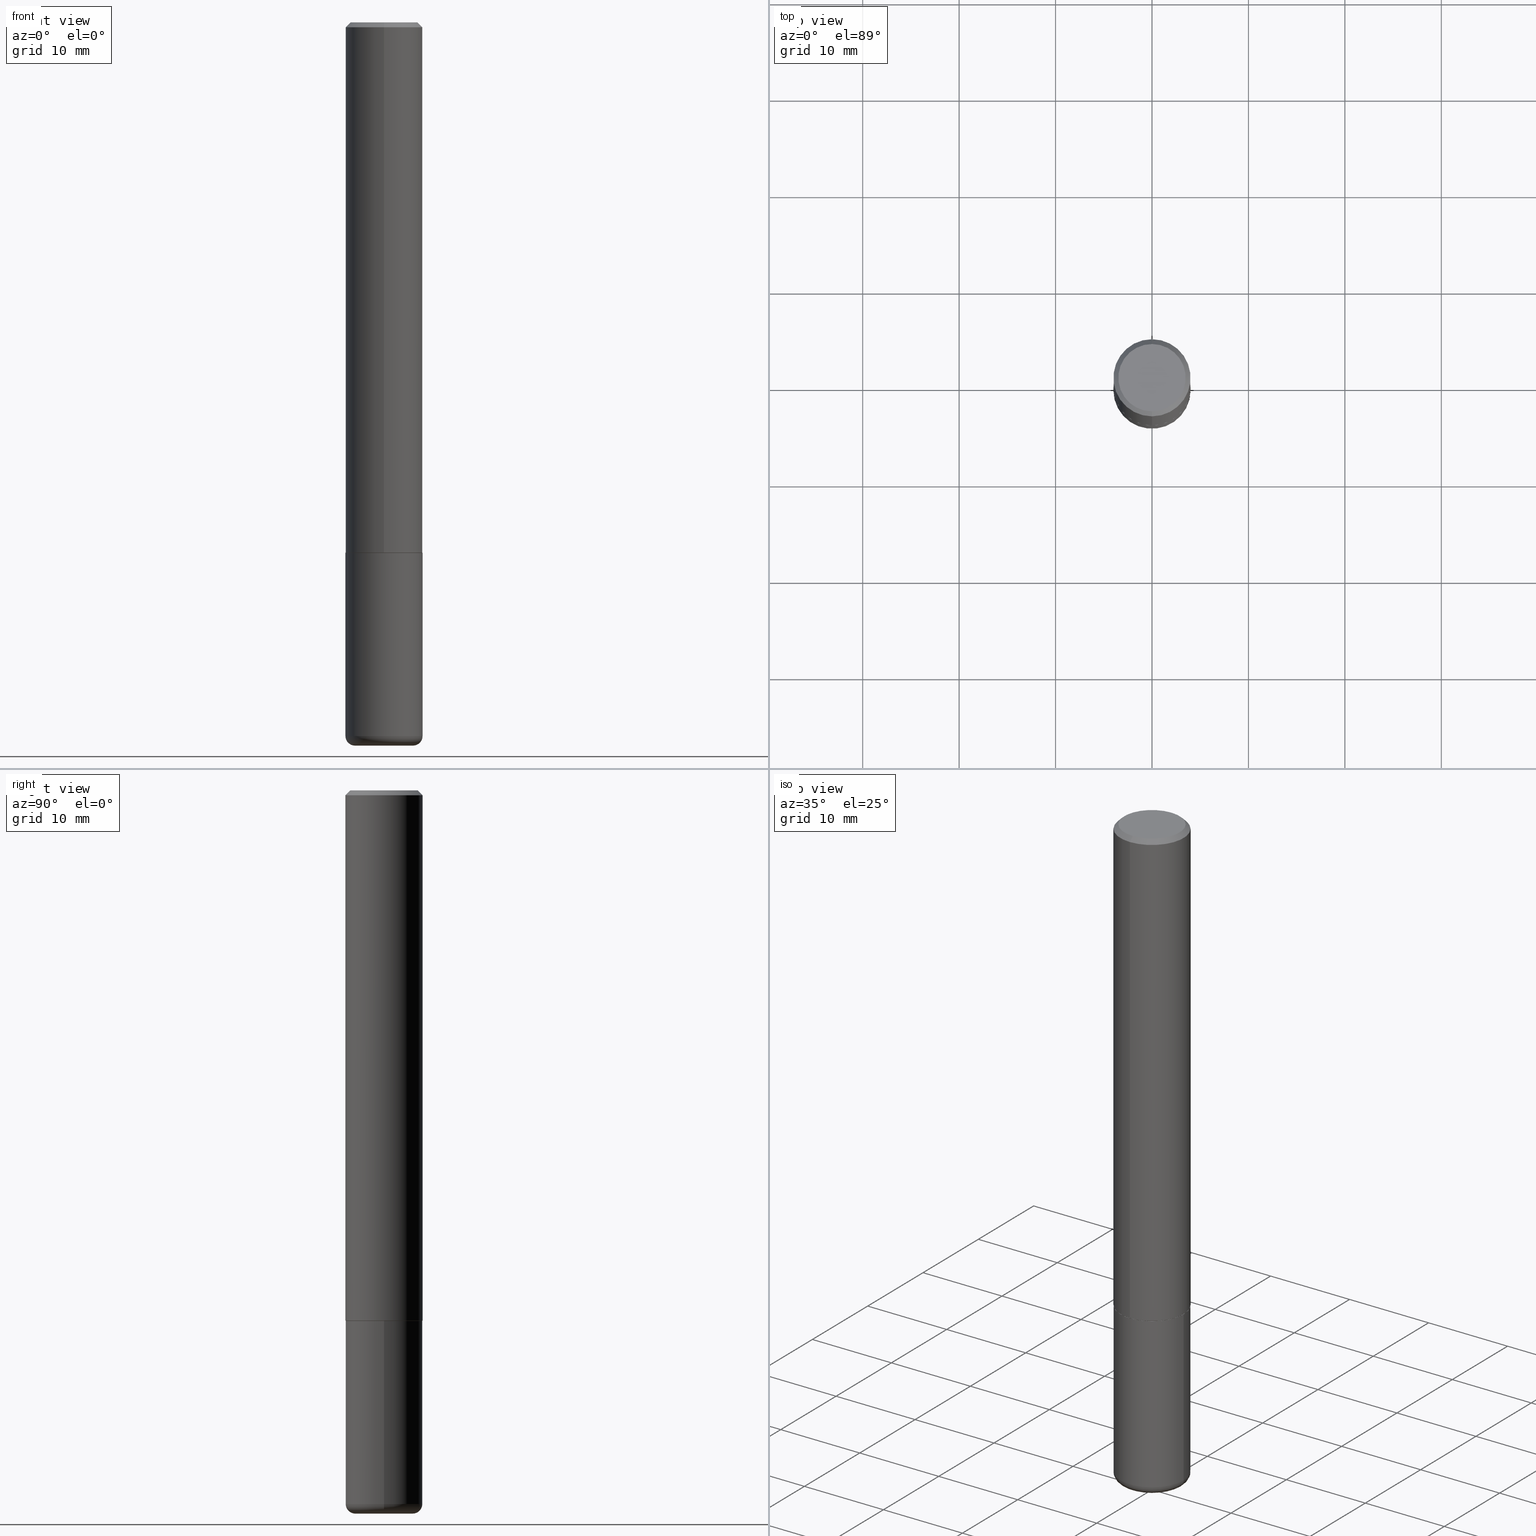
[diagram: canonical four-view strip — front | top / right | iso, engineering-drawing reading convention]
A machine part, canonical four-view strip (front | top / right | iso — engineering-drawing reading convention). The complete STEP part file that produces these views, byte-faithful:
ISO-10303-21;
HEADER;
FILE_DESCRIPTION (( 'STEP AP203' ),
    '1' );
FILE_NAME ('74358.STEP',
    '2024-03-06T15:08:53',
    ( '' ),
    ( '' ),
    'SwSTEP 2.0',
    'SolidWorks 2023',
    '' );
FILE_SCHEMA (( 'CONFIG_CONTROL_DESIGN' ));
ENDSEC;

DATA;
#1 = DIRECTION ( 'NONE',  ( -2.445468806185136597E-29, 3.491481338843145583E-15, 1.000000000000000000 ) ) ;
#2 = CC_DESIGN_PERSON_AND_ORGANIZATION_ASSIGNMENT ( #259, #187, ( #9 ) ) ;
#3 = CARTESIAN_POINT ( 'NONE',  ( 5.291802256310474180E-29, -7.558638329013498276E-15, -2.164399999999999658 ) ) ;
#4 = SHAPE_DEFINITION_REPRESENTATION ( #39, #369 ) ;
#5 = CIRCLE ( 'NONE', #236, 0.1575000000000000011 ) ;
#6 = AXIS2_PLACEMENT_3D ( 'NONE', #390, #98, #267 ) ;
#7 = FACE_OUTER_BOUND ( 'NONE', #409, .T. ) ;
#8 = DIRECTION ( 'NONE',  ( -2.444928043019069804E-29, 3.492255742475281487E-15, 1.000000000000000000 ) ) ;
#9 = PRODUCT_DEFINITION_FORMATION_WITH_SPECIFIED_SOURCE ( 'ANY', '', #135, .NOT_KNOWN. ) ;
#10 = LINE ( 'NONE', #104, #48 ) ;
#11 = CC_DESIGN_PERSON_AND_ORGANIZATION_ASSIGNMENT ( #418, #59, ( #135 ) ) ;
#12 = DIRECTION ( 'NONE',  ( 6.982962677686264344E-15, 1.000000000000000000, -3.496114991891764787E-15 ) ) ;
#13 = CARTESIAN_POINT ( 'NONE',  ( 5.291802256310474180E-29, -7.558638329013498276E-15, -2.164399999999999658 ) ) ;
#14 = DIRECTION ( 'NONE',  ( -2.444928043019069804E-29, 3.492255742475281487E-15, 1.000000000000000000 ) ) ;
#15 = CARTESIAN_POINT ( 'NONE',  ( -0.1180999999999999966, -9.332930761652941905E-15, -2.913399999999999768 ) ) ;
#16 = ADVANCED_FACE ( 'NONE', ( #378 ), #174, .T. ) ;
#17 = VECTOR ( 'NONE', #52, 39.37007874015748143 ) ;
#18 = CARTESIAN_POINT ( 'NONE',  ( 1.099816621735587480E-15, 0.1574999999999999456, -0.02000000000000058328 ) ) ;
#19 = LINE ( 'NONE', #344, #17 ) ;
#20 =( NAMED_UNIT ( * ) SI_UNIT ( $, .STERADIAN. ) SOLID_ANGLE_UNIT ( ) );
#21 = EDGE_CURVE ( 'NONE', #190, #331, #362, .T. ) ;
#22 = VERTEX_POINT ( 'NONE', #240 ) ;
#23 = CARTESIAN_POINT ( 'NONE',  ( 0.1180999999999999966, -1.099676962482036915E-14, -2.913399999999999768 ) ) ;
#24 = APPROVAL_PERSON_ORGANIZATION ( #350, #196, #319 ) ;
#25 = ORIENTED_EDGE ( 'NONE', *, *, #398, .T. ) ;
#26 = CALENDAR_DATE ( 2024, 6, 3 ) ;
#27 = CARTESIAN_POINT ( 'NONE',  ( -0.1575000000000000011, -7.747162903036124976E-15, -2.165399999999999991 ) ) ;
#28 = DIMENSIONAL_EXPONENTS ( 1.000000000000000000, 0.000000000000000000, 0.000000000000000000, 0.000000000000000000, 0.000000000000000000, 0.000000000000000000, 0.000000000000000000 ) ;
#29 = APPROVAL_STATUS ( 'not_yet_approved' ) ;
#30 = PERSON_AND_ORGANIZATION ( #197, #203 ) ;
#31 = EDGE_LOOP ( 'NONE', ( #301, #143, #282, #152 ) ) ;
#32 = DIRECTION ( 'NONE',  ( 1.000000000000000000, -6.982962677686261977E-15, 0.000000000000000000 ) ) ;
#33 = DATE_TIME_ROLE ( 'classification_date' ) ;
#34 = ORIENTED_EDGE ( 'NONE', *, *, #260, .F. ) ;
#35 = EDGE_LOOP ( 'NONE', ( #61, #252, #391, #349 ) ) ;
#36 = DIRECTION ( 'NONE',  ( -2.444928043019069243E-29, 3.492255742475281487E-15, 1.000000000000000000 ) ) ;
#37 = AXIS2_PLACEMENT_3D ( 'NONE', #111, #397, #380 ) ;
#38 = CARTESIAN_POINT ( 'NONE',  ( 7.220980290903470182E-29, -1.030964609733603853E-14, -2.952799999999999869 ) ) ;
#39 = PRODUCT_DEFINITION_SHAPE ( 'NONE', 'NONE',  #133 ) ;
#40 = EDGE_LOOP ( 'NONE', ( #417, #58, #94, #134 ) ) ;
#41 = UNCERTAINTY_MEASURE_WITH_UNIT (LENGTH_MEASURE( 1.000000000000000082E-05 ), #310, 'distance_accuracy_value', 'NONE');
#42 = EDGE_LOOP ( 'NONE', ( #195, #303 ) ) ;
#43 = CONICAL_SURFACE ( 'NONE', #237, 0.1575000000000000289, 0.7853981633974481680 ) ;
#44 = CC_DESIGN_SECURITY_CLASSIFICATION ( #317, ( #9 ) ) ;
#45 = DIRECTION ( 'NONE',  ( -2.445468806185136597E-29, 3.491481338843145583E-15, 1.000000000000000000 ) ) ;
#46 = CARTESIAN_POINT ( 'NONE',  ( 0.1575000000000000289, -1.127189835432120758E-14, -2.913399999999999768 ) ) ;
#47 = DIRECTION ( 'NONE',  ( 1.000000000000000000, -6.982962677686273021E-15, 0.000000000000000000 ) ) ;
#48 = VECTOR ( 'NONE', #235, 39.37007874015748143 ) ;
#49 = DESIGN_CONTEXT ( 'detailed design', #271, 'design' ) ;
#50 = DIRECTION ( 'NONE',  ( -6.982962677686265922E-15, -1.000000000000000000, 3.492255742475281487E-15 ) ) ;
#51 = ORIENTED_EDGE ( 'NONE', *, *, #408, .T. ) ;
#52 = DIRECTION ( 'NONE',  ( -2.444928043019069524E-29, 3.492255742475281487E-15, 1.000000000000000000 ) ) ;
#53 = CIRCLE ( 'NONE', #113, 0.1575000000000000011 ) ;
#54 = DIRECTION ( 'NONE',  ( -2.444928043019069804E-29, 3.492255742475281487E-15, 1.000000000000000000 ) ) ;
#55 = CALENDAR_DATE ( 2024, 6, 3 ) ;
#56 = VECTOR ( 'NONE', #212, 39.37007874015748854 ) ;
#57 = DIRECTION ( 'NONE',  ( -6.982962677686265133E-15, -1.000000000000000000, 3.492255742475281487E-15 ) ) ;
#58 = ORIENTED_EDGE ( 'NONE', *, *, #269, .T. ) ;
#59 = PERSON_AND_ORGANIZATION_ROLE ( 'design_owner' ) ;
#60 = EDGE_LOOP ( 'NONE', ( #99, #327, #51, #164 ) ) ;
#61 = ORIENTED_EDGE ( 'NONE', *, *, #262, .F. ) ;
#62 = CARTESIAN_POINT ( 'NONE',  ( 5.294247184353492784E-29, -7.562130584755974132E-15, -2.165399999999999991 ) ) ;
#63 = VERTEX_POINT ( 'NONE', #312 ) ;
#64 = LOCAL_TIME ( 10, 8, 53.00000000000000000, #87 ) ;
#65 = PERSON_AND_ORGANIZATION ( #197, #203 ) ;
#66 = EDGE_LOOP ( 'NONE', ( #413, #157, #321, #91 ) ) ;
#67 = ORIENTED_EDGE ( 'NONE', *, *, #80, .T. ) ;
#68 = CARTESIAN_POINT ( 'NONE',  ( 5.295418152913294345E-29, -7.560453691130947423E-15, -2.165399999999999991 ) ) ;
#69 = CIRCLE ( 'NONE', #124, 0.03940000000000005997 ) ;
#70 = ORIENTED_EDGE ( 'NONE', *, *, #101, .F. ) ;
#71 = CC_DESIGN_DATE_AND_TIME_ASSIGNMENT ( #148, #33, ( #317 ) ) ;
#72 = MANIFOLD_SOLID_BREP ( 'Body-Move/Copy2[1]', #304 ) ;
#73 = CC_DESIGN_APPROVAL ( #123, ( #9 ) ) ;
#74 = PLANE ( 'NONE',  #129 ) ;
#75 = CARTESIAN_POINT ( 'NONE',  ( 0.000000000000000000, 0.000000000000000000, 0.000000000000000000 ) ) ;
#76 = EDGE_CURVE ( 'NONE', #106, #361, #53, .T. ) ;
#77 = CIRCLE ( 'NONE', #181, 0.1575000000000003064 ) ;
#78 = CIRCLE ( 'NONE', #396, 0.03940000000000005997 ) ;
#79 = APPLICATION_PROTOCOL_DEFINITION ( 'international standard', 'config_control_design', 1994, #131 ) ;
#80 = EDGE_CURVE ( 'NONE', #63, #335, #230, .T. ) ;
#81 = EDGE_LOOP ( 'NONE', ( #381, #102, #220, #96 ) ) ;
#82 = ORIENTED_EDGE ( 'NONE', *, *, #119, .T. ) ;
#83 = CARTESIAN_POINT ( 'NONE',  ( 1.119104808822185805E-15, 0.1574999999999927569, -2.164400000000000102 ) ) ;
#84 = EDGE_CURVE ( 'NONE', #268, #361, #10, .T. ) ;
#85 = AXIS2_PLACEMENT_3D ( 'NONE', #343, #144, #299 ) ;
#86 = EDGE_CURVE ( 'NONE', #361, #106, #224, .T. ) ;
#87 = COORDINATED_UNIVERSAL_TIME_OFFSET ( 5, 0, .BEHIND. ) ;
#88 = AXIS2_PLACEMENT_3D ( 'NONE', #13, #150, #250 ) ;
#89 = CARTESIAN_POINT ( 'NONE',  ( -1.080528434649015779E-15, -0.1575000000000000844, -0.01999999999999948347 ) ) ;
#90 = COORDINATED_UNIVERSAL_TIME_OFFSET ( 5, 0, .BEHIND. ) ;
#91 = ORIENTED_EDGE ( 'NONE', *, *, #255, .F. ) ;
#92 = SECURITY_CLASSIFICATION_LEVEL ( 'unclassified' ) ;
#93 = FACE_OUTER_BOUND ( 'NONE', #223, .T. ) ;
#94 = ORIENTED_EDGE ( 'NONE', *, *, #125, .F. ) ;
#95 = VECTOR ( 'NONE', #140, 39.37007874015748143 ) ;
#96 = ORIENTED_EDGE ( 'NONE', *, *, #205, .F. ) ;
#97 = PERSON_AND_ORGANIZATION ( #197, #203 ) ;
#98 = DIRECTION ( 'NONE',  ( -2.445468806185136597E-29, 3.491481338843145583E-15, 1.000000000000000000 ) ) ;
#99 = ORIENTED_EDGE ( 'NONE', *, *, #269, .F. ) ;
#100 = DIRECTION ( 'NONE',  ( -2.444928043019069804E-29, 3.492255742475281487E-15, 1.000000000000000000 ) ) ;
#101 = EDGE_CURVE ( 'NONE', #63, #379, #307, .T. ) ;
#102 = ORIENTED_EDGE ( 'NONE', *, *, #226, .T. ) ;
#103 = CC_DESIGN_PERSON_AND_ORGANIZATION_ASSIGNMENT ( #128, #154, ( #9 ) ) ;
#104 = CARTESIAN_POINT ( 'NONE',  ( 0.1575000000000000011, -1.099816621735586889E-15, 7.679978421878598033E-30 ) ) ;
#105 = ADVANCED_FACE ( 'NONE', ( #370 ), #74, .F. ) ;
#106 = VERTEX_POINT ( 'NONE', #27 ) ;
#107 = CC_DESIGN_PERSON_AND_ORGANIZATION_ASSIGNMENT ( #30, #251, ( #133 ) ) ;
#108 = CARTESIAN_POINT ( 'NONE',  ( -1.099816621735587875E-15, -0.1575000000000001676, 5.500302794398574170E-16 ) ) ;
#109 = ADVANCED_FACE ( 'NONE', ( #149 ), #346, .T. ) ;
#110 = DIRECTION ( 'NONE',  ( -4.937700262165138110E-15, -0.7071067811866296182, 0.7071067811864654162 ) ) ;
#111 = CARTESIAN_POINT ( 'NONE',  ( 5.294247184353492784E-29, -7.562130584755974132E-15, -2.165399999999999991 ) ) ;
#112 = ADVANCED_FACE ( 'NONE', ( #179 ), #209, .T. ) ;
#113 = AXIS2_PLACEMENT_3D ( 'NONE', #404, #399, #232 ) ;
#114 = FACE_OUTER_BOUND ( 'NONE', #42, .T. ) ;
#115 = PLANE ( 'NONE',  #311 ) ;
#116 = CARTESIAN_POINT ( 'NONE',  ( 7.124628819939776708E-29, -1.017208173258561931E-14, -2.913399999999999768 ) ) ;
#117 = DIRECTION ( 'NONE',  ( -2.445468806185136597E-29, 3.491481338843145583E-15, 1.000000000000000000 ) ) ;
#118 = LINE ( 'NONE', #340, #368 ) ;
#119 = EDGE_CURVE ( 'NONE', #22, #379, #77, .T. ) ;
#120 = EDGE_LOOP ( 'NONE', ( #34, #289 ) ) ;
#121 = CARTESIAN_POINT ( 'NONE',  ( 7.124628819939776708E-29, -1.017208173258561931E-14, -2.913399999999999768 ) ) ;
#122 = CARTESIAN_POINT ( 'NONE',  ( -1.011923454671300053E-15, -0.1374999999999997891, 6.809117321244884418E-16 ) ) ;
#123 = APPROVAL ( #29, 'UNSPECIFIED' ) ;
#124 = AXIS2_PLACEMENT_3D ( 'NONE', #23, #137, #215 ) ;
#125 = EDGE_CURVE ( 'NONE', #268, #191, #5, .T. ) ;
#126 = ADVANCED_FACE ( 'NONE', ( #7 ), #261, .T. ) ;
#127 = CC_DESIGN_PERSON_AND_ORGANIZATION_ASSIGNMENT ( #65, #326, ( #317 ) ) ;
#128 = PERSON_AND_ORGANIZATION ( #197, #203 ) ;
#129 = AXIS2_PLACEMENT_3D ( 'NONE', #377, #214, #249 ) ;
#130 = LOCAL_TIME ( 10, 8, 53.00000000000000000, #322 ) ;
#131 = APPLICATION_CONTEXT ( 'configuration controlled 3d designs of mechanical parts and assemblies' ) ;
#132 = LOCAL_TIME ( 10, 8, 53.00000000000000000, #183 ) ;
#133 = PRODUCT_DEFINITION ( 'UNKNOWN', '', #9, #49 ) ;
#134 = ORIENTED_EDGE ( 'NONE', *, *, #408, .F. ) ;
#135 = PRODUCT ( '74358', '74358', '', ( #217 ) ) ;
#136 = ORIENTED_EDGE ( 'NONE', *, *, #76, .T. ) ;
#137 = DIRECTION ( 'NONE',  ( -6.982962677686266711E-15, -1.000000000000000000, 3.491481338843145583E-15 ) ) ;
#138 = DIRECTION ( 'NONE',  ( 7.105427357601001859E-15, 1.000000000000000000, -3.491481338843145583E-15 ) ) ;
#139 = AXIS2_PLACEMENT_3D ( 'NONE', #171, #314, #281 ) ;
#140 = DIRECTION ( 'NONE',  ( -2.445468806185136877E-29, 3.491481338843145188E-15, 1.000000000000000000 ) ) ;
#141 = CARTESIAN_POINT ( 'NONE',  ( 4.889856086038147210E-31, -6.984511484950574659E-17, -0.02000000000000003511 ) ) ;
#142 = FACE_OUTER_BOUND ( 'NONE', #412, .T. ) ;
#143 = ORIENTED_EDGE ( 'NONE', *, *, #165, .T. ) ;
#144 = DIRECTION ( 'NONE',  ( -2.445468806185136597E-29, 3.491481338843145583E-15, 1.000000000000000000 ) ) ;
#145 = TOROIDAL_SURFACE ( 'NONE', #216, 0.1180999999999999966, 0.03940000000000005997 ) ;
#146 = ADVANCED_FACE ( 'NONE', ( #93 ), #228, .F. ) ;
#147 = ORIENTED_EDGE ( 'NONE', *, *, #398, .F. ) ;
#148 = DATE_AND_TIME ( #227, #130 ) ;
#149 = FACE_OUTER_BOUND ( 'NONE', #81, .T. ) ;
#150 = DIRECTION ( 'NONE',  ( -2.444928043019069804E-29, 3.492255742475281487E-15, 1.000000000000000000 ) ) ;
#151 = DATE_AND_TIME ( #26, #132 ) ;
#152 = ORIENTED_EDGE ( 'NONE', *, *, #76, .F. ) ;
#153 = CIRCLE ( 'NONE', #199, 0.1575000000000000289 ) ;
#154 = PERSON_AND_ORGANIZATION_ROLE ( 'creator' ) ;
#155 = DIRECTION ( 'NONE',  ( -1.000000000000000000, 6.982962677686265922E-15, -4.876176775795935793E-29 ) ) ;
#156 = APPROVAL_DATE_TIME ( #151, #296 ) ;
#157 = ORIENTED_EDGE ( 'NONE', *, *, #262, .T. ) ;
#158 = DIRECTION ( 'NONE',  ( 1.000000000000000000, 0.000000000000000000, 0.000000000000000000 ) ) ;
#159 = CIRCLE ( 'NONE', #357, 0.1180999999999999966 ) ;
#160 = ADVANCED_FACE ( 'NONE', ( #222 ), #383, .T. ) ;
#161 = CC_DESIGN_APPROVAL ( #296, ( #317 ) ) ;
#162 = DIRECTION ( 'NONE',  ( -2.445468806185136597E-29, 3.491481338843145583E-15, 1.000000000000000000 ) ) ;
#163 = CARTESIAN_POINT ( 'NONE',  ( 5.294247184353492784E-29, -7.562130584755974132E-15, -2.165399999999999991 ) ) ;
#164 = ORIENTED_EDGE ( 'NONE', *, *, #165, .F. ) ;
#165 = EDGE_CURVE ( 'NONE', #191, #268, #270, .T. ) ;
#166 = AXIS2_PLACEMENT_3D ( 'NONE', #62, #323, #292 ) ;
#167 = VECTOR ( 'NONE', #201, 39.37007874015748854 ) ;
#168 = ORIENTED_EDGE ( 'NONE', *, *, #125, .T. ) ;
#169 = DIRECTION ( 'NONE',  ( 1.000000000000000000, -6.982962677686268288E-15, 0.000000000000000000 ) ) ;
#170 = ADVANCED_FACE ( 'NONE', ( #280 ), #115, .T. ) ;
#171 = CARTESIAN_POINT ( 'NONE',  ( -4.907620139431751550E-45, 7.009885081384458012E-31, 2.007265675341379917E-16 ) ) ;
#172 = DIRECTION ( 'NONE',  ( -2.444928043019069804E-29, 3.492255742475281487E-15, 1.000000000000000000 ) ) ;
#173 = DIRECTION ( 'NONE',  ( -2.444928043019069524E-29, 3.492255742475281487E-15, 1.000000000000000000 ) ) ;
#174 = CONICAL_SURFACE ( 'NONE', #166, 0.1565000000000000002, 0.7853981633975678500 ) ;
#175 = ADVANCED_FACE ( 'NONE', ( #277 ), #416, .T. ) ;
#176 =( GEOMETRIC_REPRESENTATION_CONTEXT ( 3 ) GLOBAL_UNCERTAINTY_ASSIGNED_CONTEXT ( ( #41 ) ) GLOBAL_UNIT_ASSIGNED_CONTEXT ( ( #310, #341, #20 ) ) REPRESENTATION_CONTEXT ( 'NONE', 'WORKASPACE' ) );
#177 = DIRECTION ( 'NONE',  ( -6.982962677686264344E-15, -1.000000000000000000, 3.496114991891764787E-15 ) ) ;
#178 = LENGTH_MEASURE_WITH_UNIT ( LENGTH_MEASURE( 0.02539999999999999897 ), #403 );
#179 = FACE_OUTER_BOUND ( 'NONE', #31, .T. ) ;
#180 = DIRECTION ( 'NONE',  ( -2.444928043019069804E-29, 3.492255742475281487E-15, 1.000000000000000000 ) ) ;
#181 = AXIS2_PLACEMENT_3D ( 'NONE', #3, #100, #387 ) ;
#182 = DIRECTION ( 'NONE',  ( -6.982962677686265922E-15, -1.000000000000000000, 3.491179544618866730E-15 ) ) ;
#183 = COORDINATED_UNIVERSAL_TIME_OFFSET ( 5, 0, .BEHIND. ) ;
#184 = CARTESIAN_POINT ( 'NONE',  ( 0.000000000000000000, 0.000000000000000000, 0.000000000000000000 ) ) ;
#185 = CC_DESIGN_DATE_AND_TIME_ASSIGNMENT ( #189, #219, ( #133 ) ) ;
#186 = ORIENTED_EDGE ( 'NONE', *, *, #21, .F. ) ;
#187 = PERSON_AND_ORGANIZATION_ROLE ( 'design_supplier' ) ;
#188 = EDGE_CURVE ( 'NONE', #335, #63, #192, .T. ) ;
#189 = DATE_AND_TIME ( #356, #263 ) ;
#190 = VERTEX_POINT ( 'NONE', #89 ) ;
#191 = VERTEX_POINT ( 'NONE', #256 ) ;
#192 = CIRCLE ( 'NONE', #337, 0.1565000000000000002 ) ;
#193 = CALENDAR_DATE ( 2024, 6, 3 ) ;
#194 = ADVANCED_FACE ( 'NONE', ( #401 ), #43, .T. ) ;
#195 = ORIENTED_EDGE ( 'NONE', *, *, #188, .F. ) ;
#196 = APPROVAL ( #386, 'UNSPECIFIED' ) ;
#197 = PERSON ( 'UNSPECIFIED', 'UNSPECIFIED', 'UNSPECIFIED', ('UNSPECIFIED'), ('UNSPECIFIED'), ('UNSPECIFIED') ) ;
#198 = DIRECTION ( 'NONE',  ( 2.438088387897960049E-29, -3.491481338843145188E-15, -1.000000000000000000 ) ) ;
#199 = AXIS2_PLACEMENT_3D ( 'NONE', #372, #206, #177 ) ;
#200 = PRODUCT_RELATED_PRODUCT_CATEGORY ( 'detail', '', ( #135 ) ) ;
#201 = DIRECTION ( 'NONE',  ( -4.851104656540962697E-15, -0.7071067811865497932, -0.7071067811865451302 ) ) ;
#202 = ORIENTED_EDGE ( 'NONE', *, *, #393, .T. ) ;
#203 = ORGANIZATION ( 'UNSPECIFIED', 'UNSPECIFIED', '' ) ;
#204 = CARTESIAN_POINT ( 'NONE',  ( -1.092833659057847823E-15, -0.1565000000000075497, -2.165399999999999103 ) ) ;
#205 = EDGE_CURVE ( 'NONE', #331, #190, #153, .T. ) ;
#206 = DIRECTION ( 'NONE',  ( -2.444928043019069804E-29, 3.492255742475281487E-15, 1.000000000000000000 ) ) ;
#207 = DIRECTION ( 'NONE',  ( 2.438088387897960049E-29, -3.491481338843145188E-15, -1.000000000000000000 ) ) ;
#208 = CIRCLE ( 'NONE', #283, 0.1374999999999997891 ) ;
#209 = CYLINDRICAL_SURFACE ( 'NONE', #85, 0.1575000000000000011 ) ;
#210 = ORIENTED_EDGE ( 'NONE', *, *, #188, .T. ) ;
#211 = ADVANCED_FACE ( 'NONE', ( #114 ), #313, .F. ) ;
#212 = DIRECTION ( 'NONE',  ( 4.937700262164546464E-15, 0.7071067811865447972, -0.7071067811865500152 ) ) ;
#213 = DIRECTION ( 'NONE',  ( -6.982962677686265133E-15, -1.000000000000000000, 3.492255742475281487E-15 ) ) ;
#214 = DIRECTION ( 'NONE',  ( 2.444928043019069243E-29, -3.492255742475281487E-15, -1.000000000000000000 ) ) ;
#215 = DIRECTION ( 'NONE',  ( 1.000000000000000000, -6.982962677686267499E-15, 0.000000000000000000 ) ) ;
#216 = AXIS2_PLACEMENT_3D ( 'NONE', #116, #243, #376 ) ;
#217 = MECHANICAL_CONTEXT ( 'NONE', #131, 'mechanical' ) ;
#218 = VERTEX_POINT ( 'NONE', #339 ) ;
#219 = DATE_TIME_ROLE ( 'creation_date' ) ;
#220 = ORIENTED_EDGE ( 'NONE', *, *, #414, .T. ) ;
#221 = APPROVAL_STATUS ( 'not_yet_approved' ) ;
#222 = FACE_OUTER_BOUND ( 'NONE', #66, .T. ) ;
#223 = EDGE_LOOP ( 'NONE', ( #354, #136 ) ) ;
#224 = CIRCLE ( 'NONE', #336, 0.1575000000000000011 ) ;
#225 = AXIS2_PLACEMENT_3D ( 'NONE', #75, #180, #213 ) ;
#226 = EDGE_CURVE ( 'NONE', #379, #22, #348, .T. ) ;
#227 = CALENDAR_DATE ( 2024, 6, 3 ) ;
#228 = PLANE ( 'NONE',  #332 ) ;
#229 = ORIENTED_EDGE ( 'NONE', *, *, #101, .T. ) ;
#230 = CIRCLE ( 'NONE', #405, 0.1565000000000000002 ) ;
#231 = AXIS2_PLACEMENT_3D ( 'NONE', #384, #353, #158 ) ;
#232 = DIRECTION ( 'NONE',  ( 1.000000000000000000, -6.982962677686268288E-15, 0.000000000000000000 ) ) ;
#233 = DIRECTION ( 'NONE',  ( -6.982962677686265922E-15, -1.000000000000000000, 3.491179544618866730E-15 ) ) ;
#234 = CARTESIAN_POINT ( 'NONE',  ( 5.294247184353492784E-29, -7.562130584755974132E-15, -2.165399999999999991 ) ) ;
#235 = DIRECTION ( 'NONE',  ( -2.445468806185136877E-29, 3.491481338843145188E-15, 1.000000000000000000 ) ) ;
#236 = AXIS2_PLACEMENT_3D ( 'NONE', #265, #1, #32 ) ;
#237 = AXIS2_PLACEMENT_3D ( 'NONE', #141, #241, #12 ) ;
#238 = ORIENTED_EDGE ( 'NONE', *, *, #84, .F. ) ;
#239 = CYLINDRICAL_SURFACE ( 'NONE', #225, 0.1575000000000001676 ) ;
#240 = CARTESIAN_POINT ( 'NONE',  ( -1.099816621735536007E-15, -0.1575000000000078559, -2.164399999999999213 ) ) ;
#241 = DIRECTION ( 'NONE',  ( 2.444928043019069804E-29, -3.492255742475281487E-15, -1.000000000000000000 ) ) ;
#242 = CARTESIAN_POINT ( 'NONE',  ( 7.220980290903470182E-29, -1.030964609733603853E-14, -2.952799999999999869 ) ) ;
#243 = DIRECTION ( 'NONE',  ( -2.445468806185136597E-29, 3.491481338843145583E-15, 1.000000000000000000 ) ) ;
#244 = LOCAL_TIME ( 10, 8, 53.00000000000000000, #291 ) ;
#245 = CARTESIAN_POINT ( 'NONE',  ( 7.220980290903470182E-29, -1.030964609733603853E-14, -2.952799999999999869 ) ) ;
#246 = VERTEX_POINT ( 'NONE', #122 ) ;
#247 = DIRECTION ( 'NONE',  ( 1.000000000000000000, -6.982962677686271444E-15, 4.883557194083114583E-29 ) ) ;
#248 = LINE ( 'NONE', #108, #363 ) ;
#249 = DIRECTION ( 'NONE',  ( 6.982962677686265922E-15, 1.000000000000000000, -3.492255742475281487E-15 ) ) ;
#250 = DIRECTION ( 'NONE',  ( -6.982962677686265133E-15, -1.000000000000000000, 3.469013325287946588E-15 ) ) ;
#251 = PERSON_AND_ORGANIZATION_ROLE ( 'creator' ) ;
#252 = ORIENTED_EDGE ( 'NONE', *, *, #407, .F. ) ;
#253 = DIRECTION ( 'NONE',  ( -2.445468806185136597E-29, 3.491481338843145583E-15, 1.000000000000000000 ) ) ;
#254 = AXIS2_PLACEMENT_3D ( 'NONE', #242, #411, #47 ) ;
#255 = EDGE_CURVE ( 'NONE', #258, #331, #355, .T. ) ;
#256 = CARTESIAN_POINT ( 'NONE',  ( -0.1575000000000000289, -9.052976923763463288E-15, -2.913399999999999768 ) ) ;
#257 = DATE_AND_TIME ( #193, #64 ) ;
#258 = VERTEX_POINT ( 'NONE', #375 ) ;
#259 = PERSON_AND_ORGANIZATION ( #197, #203 ) ;
#260 = EDGE_CURVE ( 'NONE', #218, #359, #159, .T. ) ;
#261 = CYLINDRICAL_SURFACE ( 'NONE', #6, 0.1575000000000000011 ) ;
#262 = EDGE_CURVE ( 'NONE', #246, #190, #302, .T. ) ;
#263 = LOCAL_TIME ( 10, 8, 53.00000000000000000, #90 ) ;
#264 = PERSON_AND_ORGANIZATION ( #197, #203 ) ;
#265 = CARTESIAN_POINT ( 'NONE',  ( 7.124628819939776708E-29, -1.017208173258561931E-14, -2.913399999999999768 ) ) ;
#266 = DIRECTION ( 'NONE',  ( 1.000000000000000000, -6.982962677686273021E-15, 0.000000000000000000 ) ) ;
#267 = DIRECTION ( 'NONE',  ( 1.000000000000000000, -6.982962677686265922E-15, 4.876176775795935232E-29 ) ) ;
#268 = VERTEX_POINT ( 'NONE', #46 ) ;
#269 = EDGE_CURVE ( 'NONE', #359, #191, #78, .T. ) ;
#270 = CIRCLE ( 'NONE', #274, 0.1575000000000000011 ) ;
#271 = APPLICATION_CONTEXT ( 'configuration controlled 3d designs of mechanical parts and assemblies' ) ;
#272 = ADVANCED_FACE ( 'NONE', ( #142 ), #406, .T. ) ;
#273 = CARTESIAN_POINT ( 'NONE',  ( 1.111999381464609449E-15, 0.1564999999999924507, -2.165400000000000436 ) ) ;
#274 = AXIS2_PLACEMENT_3D ( 'NONE', #121, #253, #290 ) ;
#275 = CARTESIAN_POINT ( 'NONE',  ( -4.907620139431751550E-45, 7.009885081384458012E-31, 2.007265675341379917E-16 ) ) ;
#276 = CARTESIAN_POINT ( 'NONE',  ( 1.099816621735587480E-15, 0.1574999999999999456, -0.02000000000000058328 ) ) ;
#277 = FACE_OUTER_BOUND ( 'NONE', #60, .T. ) ;
#278 = CARTESIAN_POINT ( 'NONE',  ( -0.1180999999999999966, -9.261736025083411415E-15, -2.952799999999999869 ) ) ;
#279 = DIRECTION ( 'NONE',  ( -1.000000000000000000, 7.105427357601014480E-15, 0.000000000000000000 ) ) ;
#280 = FACE_OUTER_BOUND ( 'NONE', #120, .T. ) ;
#281 = DIRECTION ( 'NONE',  ( -6.982962677686265922E-15, -1.000000000000000000, 3.492255742475281487E-15 ) ) ;
#282 = ORIENTED_EDGE ( 'NONE', *, *, #84, .T. ) ;
#283 = AXIS2_PLACEMENT_3D ( 'NONE', #275, #14, #50 ) ;
#284 = DIRECTION ( 'NONE',  ( -1.000000000000000000, 6.982962677686265922E-15, -4.876176775795935793E-29 ) ) ;
#285 = CARTESIAN_POINT ( 'NONE',  ( -0.1575000000000000011, 1.119104808822157801E-15, -7.747322767151475583E-30 ) ) ;
#286 = ORIENTED_EDGE ( 'NONE', *, *, #226, .F. ) ;
#287 = APPROVAL_ROLE ( '' ) ;
#288 = DIRECTION ( 'NONE',  ( 6.982962677686264344E-15, 1.000000000000000000, -3.496114991891764787E-15 ) ) ;
#289 = ORIENTED_EDGE ( 'NONE', *, *, #400, .F. ) ;
#290 = DIRECTION ( 'NONE',  ( 1.000000000000000000, -6.982962677686261977E-15, 0.000000000000000000 ) ) ;
#291 = COORDINATED_UNIVERSAL_TIME_OFFSET ( 5, 0, .BEHIND. ) ;
#292 = DIRECTION ( 'NONE',  ( -6.982962677686265922E-15, -1.000000000000000000, 3.491179544618866730E-15 ) ) ;
#293 = ORIENTED_EDGE ( 'NONE', *, *, #308, .T. ) ;
#294 = EDGE_LOOP ( 'NONE', ( #334, #293 ) ) ;
#295 = APPLICATION_PROTOCOL_DEFINITION ( 'international standard', 'config_control_design', 1994, #271 ) ;
#296 = APPROVAL ( #221, 'UNSPECIFIED' ) ;
#297 = VECTOR ( 'NONE', #394, 39.37007874015748143 ) ;
#298 = AXIS2_PLACEMENT_3D ( 'NONE', #234, #36, #338 ) ;
#299 = DIRECTION ( 'NONE',  ( 1.000000000000000000, -6.982962677686265922E-15, 4.876176775795935232E-29 ) ) ;
#300 = EDGE_CURVE ( 'NONE', #379, #331, #19, .T. ) ;
#301 = ORIENTED_EDGE ( 'NONE', *, *, #393, .F. ) ;
#302 = LINE ( 'NONE', #364, #167 ) ;
#303 = ORIENTED_EDGE ( 'NONE', *, *, #80, .F. ) ;
#304 = CLOSED_SHELL ( 'NONE', ( #126, #352, #146, #112, #175, #170 ) ) ;
#305 = AXIS2_PLACEMENT_3D ( 'NONE', #330, #318, #288 ) ;
#306 = APPROVAL_PERSON_ORGANIZATION ( #97, #296, #287 ) ;
#307 = LINE ( 'NONE', #273, #297 ) ;
#308 = EDGE_CURVE ( 'NONE', #246, #258, #333, .T. ) ;
#309 = LINE ( 'NONE', #285, #95 ) ;
#310 =( CONVERSION_BASED_UNIT ( 'INCH', #178 ) LENGTH_UNIT ( ) NAMED_UNIT ( #28 ) );
#311 = AXIS2_PLACEMENT_3D ( 'NONE', #245, #207, #284 ) ;
#312 = CARTESIAN_POINT ( 'NONE',  ( 1.115552095143411136E-15, 0.1564999999999924507, -2.165400000000000436 ) ) ;
#313 = PLANE ( 'NONE',  #298 ) ;
#314 = DIRECTION ( 'NONE',  ( -2.444928043019069804E-29, 3.492255742475281487E-15, 1.000000000000000000 ) ) ;
#315 = DIRECTION ( 'NONE',  ( -6.982962677686264344E-15, -1.000000000000000000, 3.496114991891764787E-15 ) ) ;
#316 = CARTESIAN_POINT ( 'NONE',  ( 5.294247184353492784E-29, -7.562130584755974132E-15, -2.165399999999999991 ) ) ;
#317 = SECURITY_CLASSIFICATION ( '', '', #92 ) ;
#318 = DIRECTION ( 'NONE',  ( 2.444928043019069804E-29, -3.492255742475281487E-15, -1.000000000000000000 ) ) ;
#319 = APPROVAL_ROLE ( '' ) ;
#320 = DIRECTION ( 'NONE',  ( -2.444928043019069804E-29, 3.492255742475281487E-15, 1.000000000000000000 ) ) ;
#321 = ORIENTED_EDGE ( 'NONE', *, *, #21, .T. ) ;
#322 = COORDINATED_UNIVERSAL_TIME_OFFSET ( 5, 0, .BEHIND. ) ;
#323 = DIRECTION ( 'NONE',  ( -2.444928043019069804E-29, 3.492255742475281487E-15, 1.000000000000000000 ) ) ;
#324 = AXIS2_PLACEMENT_3D ( 'NONE', #410, #117, #247 ) ;
#325 = EDGE_LOOP ( 'NONE', ( #70, #67, #25, #286 ) ) ;
#326 = PERSON_AND_ORGANIZATION_ROLE ( 'classification_officer' ) ;
#327 = ORIENTED_EDGE ( 'NONE', *, *, #400, .T. ) ;
#328 = DATE_AND_TIME ( #55, #244 ) ;
#329 = ORIENTED_EDGE ( 'NONE', *, *, #119, .F. ) ;
#330 = CARTESIAN_POINT ( 'NONE',  ( 4.889856086038147210E-31, -6.984511484950574659E-17, -0.02000000000000003511 ) ) ;
#331 = VERTEX_POINT ( 'NONE', #18 ) ;
#332 = AXIS2_PLACEMENT_3D ( 'NONE', #68, #198, #155 ) ;
#333 = CIRCLE ( 'NONE', #139, 0.1374999999999997891 ) ;
#334 = ORIENTED_EDGE ( 'NONE', *, *, #407, .T. ) ;
#335 = VERTEX_POINT ( 'NONE', #204 ) ;
#336 = AXIS2_PLACEMENT_3D ( 'NONE', #366, #45, #169 ) ;
#337 = AXIS2_PLACEMENT_3D ( 'NONE', #316, #54, #182 ) ;
#338 = DIRECTION ( 'NONE',  ( -6.982962677686265922E-15, -1.000000000000000000, 3.492255742475281487E-15 ) ) ;
#339 = CARTESIAN_POINT ( 'NONE',  ( 0.1180999999999999966, -1.113433398957078679E-14, -2.952799999999999869 ) ) ;
#340 = CARTESIAN_POINT ( 'NONE',  ( -1.092833659057847823E-15, -0.1565000000000075497, -2.165399999999999103 ) ) ;
#341 =( NAMED_UNIT ( * ) PLANE_ANGLE_UNIT ( ) SI_UNIT ( $, .RADIAN. ) );
#342 = CC_DESIGN_APPROVAL ( #196, ( #133 ) ) ;
#343 = CARTESIAN_POINT ( 'NONE',  ( 0.000000000000000000, 0.000000000000000000, 0.000000000000000000 ) ) ;
#344 = CARTESIAN_POINT ( 'NONE',  ( 1.119104808822158787E-15, 0.1575000000000001676, -5.500302794398574170E-16 ) ) ;
#345 = ORIENTED_EDGE ( 'NONE', *, *, #300, .T. ) ;
#346 = CYLINDRICAL_SURFACE ( 'NONE', #367, 0.1575000000000001676 ) ;
#347 = EDGE_LOOP ( 'NONE', ( #82, #345, #186, #365 ) ) ;
#348 = CIRCLE ( 'NONE', #88, 0.1575000000000003064 ) ;
#349 = ORIENTED_EDGE ( 'NONE', *, *, #205, .T. ) ;
#350 = PERSON_AND_ORGANIZATION ( #197, #203 ) ;
#351 = MANIFOLD_SOLID_BREP ( 'Body-Move/Copy2[2]', #395 ) ;
#352 = ADVANCED_FACE ( 'NONE', ( #402 ), #145, .T. ) ;
#353 = DIRECTION ( 'NONE',  ( 0.000000000000000000, 0.000000000000000000, 1.000000000000000000 ) ) ;
#354 = ORIENTED_EDGE ( 'NONE', *, *, #86, .T. ) ;
#355 = LINE ( 'NONE', #276, #56 ) ;
#356 = CALENDAR_DATE ( 2024, 6, 3 ) ;
#357 = AXIS2_PLACEMENT_3D ( 'NONE', #38, #162, #266 ) ;
#358 = APPROVAL_DATE_TIME ( #328, #196 ) ;
#359 = VERTEX_POINT ( 'NONE', #278 ) ;
#360 = ADVANCED_FACE ( 'NONE', ( #373 ), #239, .T. ) ;
#361 = VERTEX_POINT ( 'NONE', #371 ) ;
#362 = CIRCLE ( 'NONE', #415, 0.1575000000000000289 ) ;
#363 = VECTOR ( 'NONE', #173, 39.37007874015748143 ) ;
#364 = CARTESIAN_POINT ( 'NONE',  ( -1.080528434649015779E-15, -0.1575000000000000844, -0.01999999999999948347 ) ) ;
#365 = ORIENTED_EDGE ( 'NONE', *, *, #414, .F. ) ;
#366 = CARTESIAN_POINT ( 'NONE',  ( 5.295418152913294345E-29, -7.560453691130947423E-15, -2.165399999999999991 ) ) ;
#367 = AXIS2_PLACEMENT_3D ( 'NONE', #184, #320, #57 ) ;
#368 = VECTOR ( 'NONE', #110, 39.37007874015748143 ) ;
#369 = ADVANCED_BREP_SHAPE_REPRESENTATION ( '74358', ( #72, #351, #231 ), #176 ) ;
#370 = FACE_OUTER_BOUND ( 'NONE', #294, .T. ) ;
#371 = CARTESIAN_POINT ( 'NONE',  ( 0.1575000000000000011, -8.660270312866534114E-15, -2.165399999999999991 ) ) ;
#372 = CARTESIAN_POINT ( 'NONE',  ( 4.889856086038147210E-31, -6.984511484950574659E-17, -0.02000000000000003511 ) ) ;
#373 = FACE_OUTER_BOUND ( 'NONE', #347, .T. ) ;
#374 = CARTESIAN_POINT ( 'NONE',  ( 4.889856086038147210E-31, -6.984511484950574659E-17, -0.02000000000000003511 ) ) ;
#375 = CARTESIAN_POINT ( 'NONE',  ( 1.029986994958723788E-15, 0.1374999999999997891, -2.794585970562124091E-16 ) ) ;
#376 = DIRECTION ( 'NONE',  ( 1.000000000000000000, -6.982962677686271444E-15, 4.883557194083114583E-29 ) ) ;
#377 = CARTESIAN_POINT ( 'NONE',  ( 9.601573681818600950E-16, 0.1374999999999997891, -3.798218808232814543E-16 ) ) ;
#378 = FACE_OUTER_BOUND ( 'NONE', #325, .T. ) ;
#379 = VERTEX_POINT ( 'NONE', #83 ) ;
#380 = DIRECTION ( 'NONE',  ( -6.982962677686265922E-15, -1.000000000000000000, 3.491179544618866730E-15 ) ) ;
#381 = ORIENTED_EDGE ( 'NONE', *, *, #300, .F. ) ;
#382 = APPROVAL_ROLE ( '' ) ;
#383 = CONICAL_SURFACE ( 'NONE', #305, 0.1575000000000000289, 0.7853981633974481680 ) ;
#384 = CARTESIAN_POINT ( 'NONE',  ( 0.000000000000000000, 0.000000000000000000, 0.000000000000000000 ) ) ;
#385 = ORIENTED_EDGE ( 'NONE', *, *, #86, .F. ) ;
#386 = APPROVAL_STATUS ( 'not_yet_approved' ) ;
#387 = DIRECTION ( 'NONE',  ( -6.982962677686265133E-15, -1.000000000000000000, 3.469013325287946588E-15 ) ) ;
#388 = CIRCLE ( 'NONE', #254, 0.1180999999999999966 ) ;
#389 = APPROVAL_DATE_TIME ( #257, #123 ) ;
#390 = CARTESIAN_POINT ( 'NONE',  ( 0.000000000000000000, 0.000000000000000000, 0.000000000000000000 ) ) ;
#391 = ORIENTED_EDGE ( 'NONE', *, *, #255, .T. ) ;
#392 = APPROVAL_PERSON_ORGANIZATION ( #264, #123, #382 ) ;
#393 = EDGE_CURVE ( 'NONE', #191, #106, #309, .T. ) ;
#394 = DIRECTION ( 'NONE',  ( 5.024295867788662713E-15, 0.7071067811866345032, 0.7071067811864605313 ) ) ;
#395 = CLOSED_SHELL ( 'NONE', ( #272, #360, #160, #194, #109, #16, #211, #105 ) ) ;
#396 = AXIS2_PLACEMENT_3D ( 'NONE', #15, #138, #279 ) ;
#397 = DIRECTION ( 'NONE',  ( -2.444928043019069804E-29, 3.492255742475281487E-15, 1.000000000000000000 ) ) ;
#398 = EDGE_CURVE ( 'NONE', #335, #22, #118, .T. ) ;
#399 = DIRECTION ( 'NONE',  ( -2.445468806185136597E-29, 3.491481338843145583E-15, 1.000000000000000000 ) ) ;
#400 = EDGE_CURVE ( 'NONE', #359, #218, #388, .T. ) ;
#401 = FACE_OUTER_BOUND ( 'NONE', #35, .T. ) ;
#402 = FACE_OUTER_BOUND ( 'NONE', #40, .T. ) ;
#403 =( LENGTH_UNIT ( ) NAMED_UNIT ( * ) SI_UNIT ( $, .METRE. ) );
#404 = CARTESIAN_POINT ( 'NONE',  ( 5.295418152913294345E-29, -7.560453691130947423E-15, -2.165399999999999991 ) ) ;
#405 = AXIS2_PLACEMENT_3D ( 'NONE', #163, #8, #233 ) ;
#406 = CONICAL_SURFACE ( 'NONE', #37, 0.1565000000000000002, 0.7853981633975678500 ) ;
#407 = EDGE_CURVE ( 'NONE', #258, #246, #208, .T. ) ;
#408 = EDGE_CURVE ( 'NONE', #218, #268, #69, .T. ) ;
#409 = EDGE_LOOP ( 'NONE', ( #168, #202, #385, #238 ) ) ;
#410 = CARTESIAN_POINT ( 'NONE',  ( 7.124628819939776708E-29, -1.017208173258561931E-14, -2.913399999999999768 ) ) ;
#411 = DIRECTION ( 'NONE',  ( -2.445468806185136597E-29, 3.491481338843145583E-15, 1.000000000000000000 ) ) ;
#412 = EDGE_LOOP ( 'NONE', ( #210, #229, #329, #147 ) ) ;
#413 = ORIENTED_EDGE ( 'NONE', *, *, #308, .F. ) ;
#414 = EDGE_CURVE ( 'NONE', #22, #190, #248, .T. ) ;
#415 = AXIS2_PLACEMENT_3D ( 'NONE', #374, #172, #315 ) ;
#416 = TOROIDAL_SURFACE ( 'NONE', #324, 0.1180999999999999966, 0.03940000000000005997 ) ;
#417 = ORIENTED_EDGE ( 'NONE', *, *, #260, .T. ) ;
#418 = PERSON_AND_ORGANIZATION ( #197, #203 ) ;
ENDSEC;
END-ISO-10303-21;
